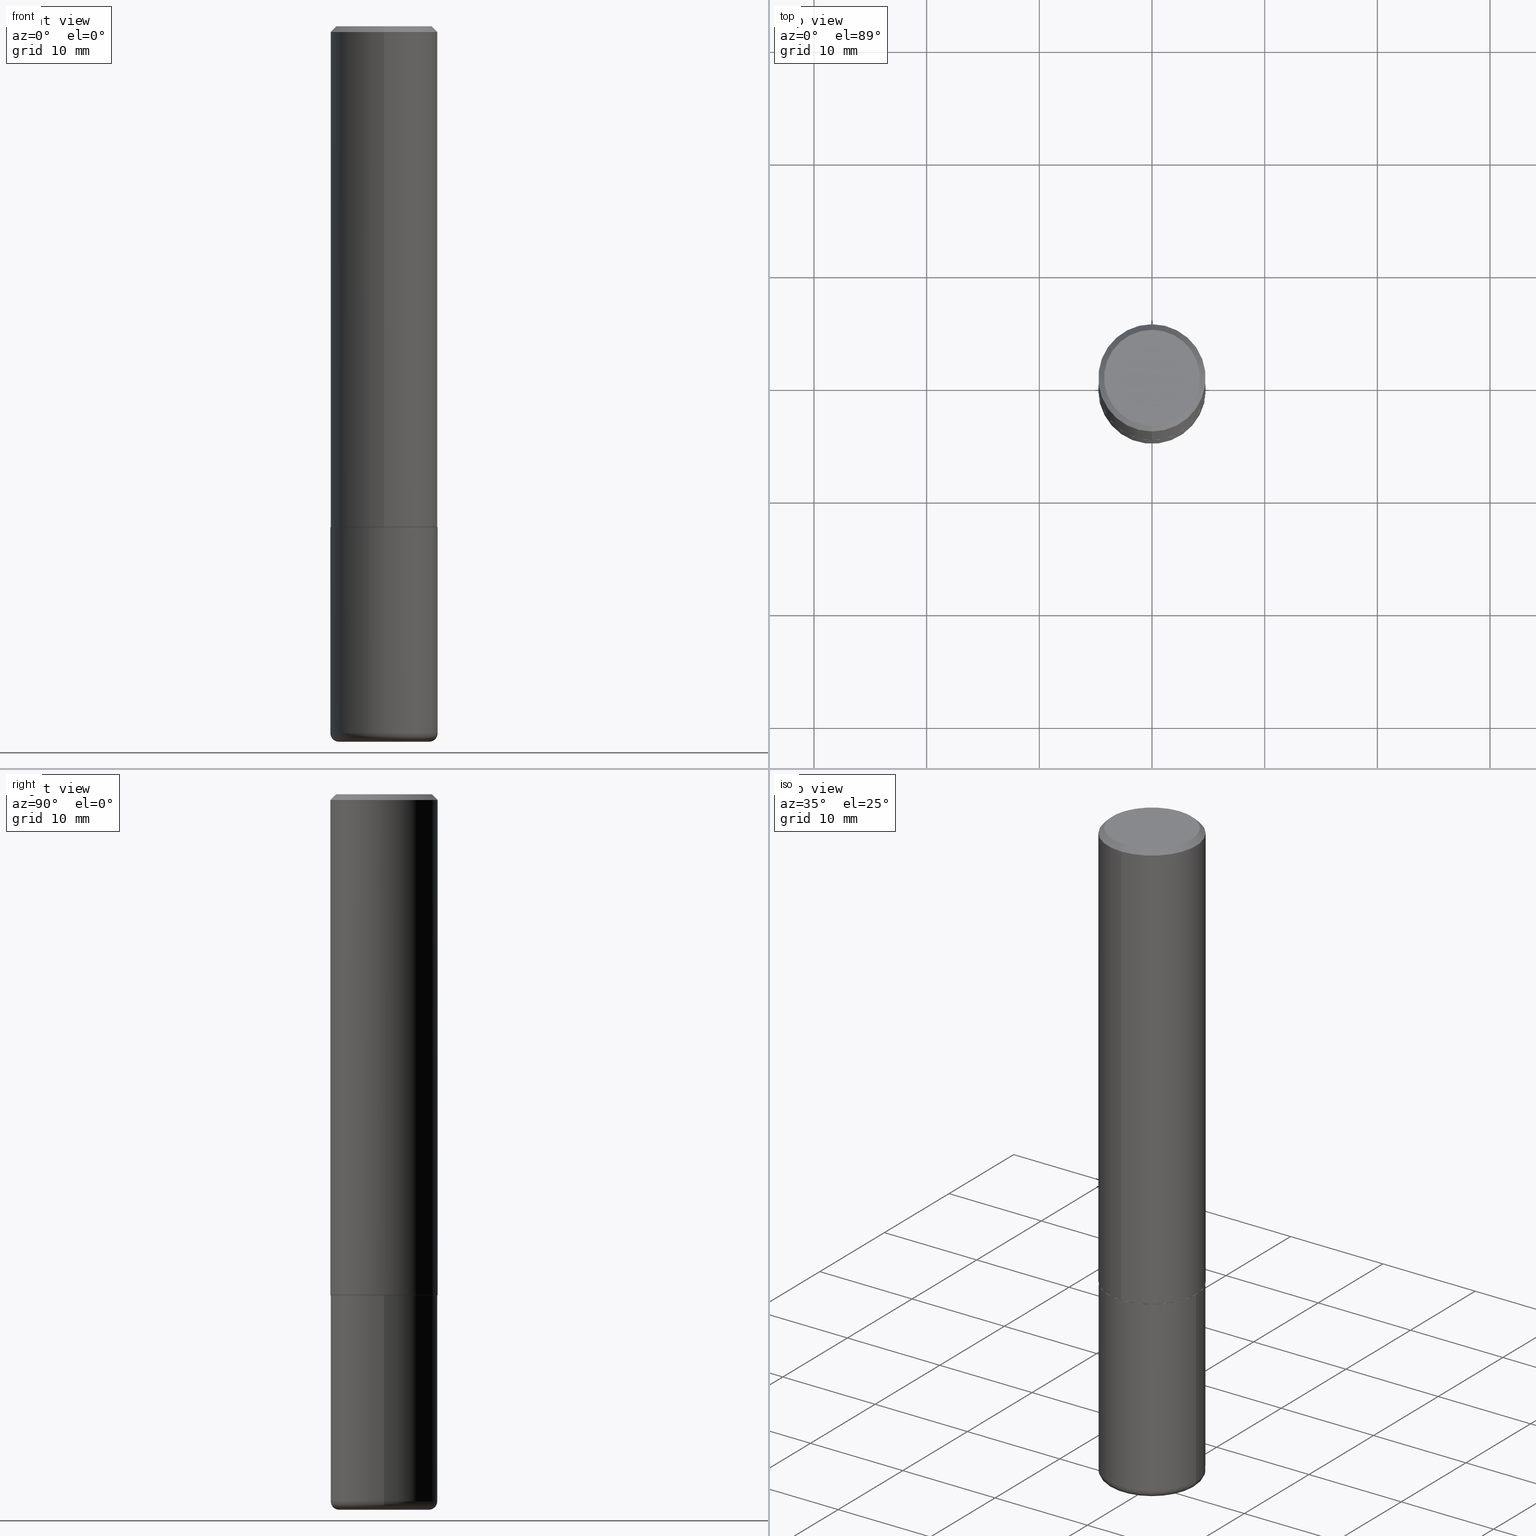
[diagram: canonical four-view strip — front | top / right | iso, engineering-drawing reading convention]
A machine part, canonical four-view strip (front | top / right | iso — engineering-drawing reading convention). The complete STEP part file that produces these views, byte-faithful:
ISO-10303-21;
HEADER;
FILE_DESCRIPTION (( 'STEP AP203' ),
    '1' );
FILE_NAME ('37189.STEP',
    '2024-03-01T21:36:36',
    ( '' ),
    ( '' ),
    'SwSTEP 2.0',
    'SolidWorks 2023',
    '' );
FILE_SCHEMA (( 'CONFIG_CONTROL_DESIGN' ));
ENDSEC;

DATA;
#1 = DIRECTION ( 'NONE',  ( 7.105427357601001859E-15, 1.000000000000000000, -3.491481338843145583E-15 ) ) ;
#2 = EDGE_CURVE ( 'NONE', #291, #316, #162, .T. ) ;
#3 = AXIS2_PLACEMENT_3D ( 'NONE', #144, #333, #50 ) ;
#4 = ORIENTED_EDGE ( 'NONE', *, *, #375, .F. ) ;
#5 = CARTESIAN_POINT ( 'NONE',  ( 0.1875000000000000278, -7.419397845041680468E-15, -1.750000000000000222 ) ) ;
#6 = DIRECTION ( 'NONE',  ( 1.000000000000000000, -6.982962677686266711E-15, 4.876176775795935793E-29 ) ) ;
#7 = CARTESIAN_POINT ( 'NONE',  ( 0.000000000000000000, 0.000000000000000000, 0.000000000000000000 ) ) ;
#8 = PERSON_AND_ORGANIZATION ( #396, #320 ) ;
#9 = VECTOR ( 'NONE', #201, 39.37007874015748143 ) ;
#10 = SECURITY_CLASSIFICATION ( '', '', #218 ) ;
#11 = CARTESIAN_POINT ( 'NONE',  ( -1.286343374582161774E-15, -0.1875000000000001110, -0.01999999999999938632 ) ) ;
#12 = EDGE_CURVE ( 'NONE', #286, #237, #184, .T. ) ;
#13 = FACE_OUTER_BOUND ( 'NONE', #124, .T. ) ;
#14 = DIRECTION ( 'NONE',  ( -6.982962677686265922E-15, -1.000000000000000000, 3.483106191921934371E-15 ) ) ;
#15 = CARTESIAN_POINT ( 'NONE',  ( -1.779621666799247049E-45, 2.542884271553755101E-31, 7.280161000879371670E-17 ) ) ;
#16 = VECTOR ( 'NONE', #373, 39.37007874015748143 ) ;
#17 = DIRECTION ( 'NONE',  ( -6.982962677686265922E-15, -1.000000000000000000, 2.913971193241877216E-15 ) ) ;
#18 = DIRECTION ( 'NONE',  ( -6.982962677686265922E-15, -1.000000000000000000, 2.913971193241877216E-15 ) ) ;
#19 = ORIENTED_EDGE ( 'NONE', *, *, #255, .F. ) ;
#20 = PERSON_AND_ORGANIZATION ( #396, #320 ) ;
#21 = APPROVAL_PERSON_ORGANIZATION ( #34, #266, #174 ) ;
#22 = CARTESIAN_POINT ( 'NONE',  ( -1.309305502066175797E-15, -0.1875000000000001110, 6.549179349999783826E-16 ) ) ;
#23 =( CONVERSION_BASED_UNIT ( 'INCH', #315 ) LENGTH_UNIT ( ) NAMED_UNIT ( #344 ) );
#24 = DIRECTION ( 'NONE',  ( 1.000000000000000000, -6.982962677686269077E-15, 4.883557194083113462E-29 ) ) ;
#25 = ORIENTED_EDGE ( 'NONE', *, *, #99, .F. ) ;
#26 = EDGE_CURVE ( 'NONE', #118, #397, #109, .T. ) ;
#27 = DIRECTION ( 'NONE',  ( -2.444481195655269587E-29, 3.492895653333215411E-15, 1.000000000000000000 ) ) ;
#28 = ORIENTED_EDGE ( 'NONE', *, *, #386, .F. ) ;
#29 = DIRECTION ( 'NONE',  ( -2.444481195655269587E-29, 3.492895653333215411E-15, 1.000000000000000000 ) ) ;
#30 = VECTOR ( 'NONE', #410, 39.37007874015748143 ) ;
#31 = AXIS2_PLACEMENT_3D ( 'NONE', #157, #123, #404 ) ;
#32 = VERTEX_POINT ( 'NONE', #151 ) ;
#33 = EDGE_CURVE ( 'NONE', #291, #105, #413, .T. ) ;
#34 = PERSON_AND_ORGANIZATION ( #396, #320 ) ;
#35 = CARTESIAN_POINT ( 'NONE',  ( 6.113672015462842613E-29, -8.728703347107864943E-15, -2.500000000000000000 ) ) ;
#36 = AXIS2_PLACEMENT_3D ( 'NONE', #35, #152, #388 ) ;
#37 = DIRECTION ( 'NONE',  ( -6.982962677686266711E-15, -1.000000000000000000, 3.492895653333215805E-15 ) ) ;
#38 = DIRECTION ( 'NONE',  ( 0.000000000000000000, 0.000000000000000000, 1.000000000000000000 ) ) ;
#39 = CARTESIAN_POINT ( 'NONE',  ( 0.1575000000000000289, -9.828519968843451634E-15, -2.500000000000000000 ) ) ;
#40 = ORIENTED_EDGE ( 'NONE', *, *, #329, .F. ) ;
#41 = COORDINATED_UNIVERSAL_TIME_OFFSET ( 5, 0, .BEHIND. ) ;
#42 = CONICAL_SURFACE ( 'NONE', #75, 0.1864999999999999991, 0.7853981633975165577 ) ;
#43 = PERSON_AND_ORGANIZATION ( #396, #320 ) ;
#44 = EDGE_CURVE ( 'NONE', #418, #376, #276, .T. ) ;
#45 = DIRECTION ( 'NONE',  ( -2.444481195655269307E-29, 3.492895653333215411E-15, 1.000000000000000000 ) ) ;
#46 = DATE_TIME_ROLE ( 'creation_date' ) ;
#47 = DIRECTION ( 'NONE',  ( -2.444481195655269587E-29, 3.492895653333215411E-15, 1.000000000000000000 ) ) ;
#48 = DIRECTION ( 'NONE',  ( -2.444481195655269587E-29, 3.492895653333215411E-15, 1.000000000000000000 ) ) ;
#49 = ORIENTED_EDGE ( 'NONE', *, *, #386, .T. ) ;
#50 = DIRECTION ( 'NONE',  ( 1.000000000000000000, -6.982962677686269077E-15, 0.000000000000000000 ) ) ;
#51 = CARTESIAN_POINT ( 'NONE',  ( 4.275397611201066851E-29, -6.109074497679794088E-15, -1.749000000000000110 ) ) ;
#52 = AXIS2_PLACEMENT_3D ( 'NONE', #391, #303, #121 ) ;
#53 = FACE_OUTER_BOUND ( 'NONE', #256, .T. ) ;
#54 = EDGE_CURVE ( 'NONE', #286, #32, #409, .T. ) ;
#55 = DIRECTION ( 'NONE',  ( -4.851104656540961908E-15, -0.7071067811865496822, -0.7071067811865453523 ) ) ;
#56 = EDGE_LOOP ( 'NONE', ( #408, #175, #377, #354 ) ) ;
#57 = CARTESIAN_POINT ( 'NONE',  ( 0.1575000000000000289, -9.723775528678158264E-15, -2.470000000000000195 ) ) ;
#58 = FACE_OUTER_BOUND ( 'NONE', #161, .T. ) ;
#59 = ORIENTED_EDGE ( 'NONE', *, *, #208, .F. ) ;
#60 = AXIS2_PLACEMENT_3D ( 'NONE', #189, #146, #312 ) ;
#61 = EDGE_CURVE ( 'NONE', #376, #118, #91, .T. ) ;
#62 = EDGE_LOOP ( 'NONE', ( #233, #352, #229, #49 ) ) ;
#63 = DATE_TIME_ROLE ( 'classification_date' ) ;
#64 = UNCERTAINTY_MEASURE_WITH_UNIT (LENGTH_MEASURE( 1.000000000000000082E-05 ), #23, 'distance_accuracy_value', 'NONE');
#65 = CYLINDRICAL_SURFACE ( 'NONE', #267, 0.1875000000000001110 ) ;
#66 = CARTESIAN_POINT ( 'NONE',  ( -1.302322539388446001E-15, -0.1865000000000061331, -1.749999999999999556 ) ) ;
#67 = ORIENTED_EDGE ( 'NONE', *, *, #74, .F. ) ;
#68 = EDGE_CURVE ( 'NONE', #316, #291, #126, .T. ) ;
#69 = ORIENTED_EDGE ( 'NONE', *, *, #375, .T. ) ;
#70 = APPLICATION_PROTOCOL_DEFINITION ( 'international standard', 'config_control_design', 1994, #311 ) ;
#71 = FACE_OUTER_BOUND ( 'NONE', #172, .T. ) ;
#72 = ORIENTED_EDGE ( 'NONE', *, *, #169, .F. ) ;
#73 = CARTESIAN_POINT ( 'NONE',  ( 1.332267629550188440E-15, 0.1875000000000001110, -6.549179349999783826E-16 ) ) ;
#74 = EDGE_CURVE ( 'NONE', #194, #382, #262, .T. ) ;
#75 = AXIS2_PLACEMENT_3D ( 'NONE', #86, #244, #210 ) ;
#76 = CYLINDRICAL_SURFACE ( 'NONE', #385, 0.1874999999999999722 ) ;
#77 = APPLICATION_PROTOCOL_DEFINITION ( 'international standard', 'config_control_design', 1994, #270 ) ;
#78 = PRODUCT_DEFINITION_SHAPE ( 'NONE', 'NONE',  #398 ) ;
#79 = APPROVAL_ROLE ( '' ) ;
#80 = TOROIDAL_SURFACE ( 'NONE', #254, 0.1575000000000000289, 0.02999999999999995379 ) ;
#81 = PLANE ( 'NONE',  #248 ) ;
#82 = CARTESIAN_POINT ( 'NONE',  ( 4.888962391310548493E-31, -6.985791306666444725E-17, -0.02000000000000003858 ) ) ;
#83 = CARTESIAN_POINT ( 'NONE',  ( 6.113672015462842613E-29, -8.728703347107864943E-15, -2.500000000000000000 ) ) ;
#84 = CARTESIAN_POINT ( 'NONE',  ( 4.279570410823989044E-29, -6.110092342975505460E-15, -1.750000000000000222 ) ) ;
#85 = CARTESIAN_POINT ( 'NONE',  ( 4.277842092396721777E-29, -6.112567393333128547E-15, -1.750000000000000222 ) ) ;
#86 = CARTESIAN_POINT ( 'NONE',  ( 4.277842092396721777E-29, -6.112567393333128547E-15, -1.750000000000000222 ) ) ;
#87 = CONICAL_SURFACE ( 'NONE', #185, 0.1864999999999999991, 0.7853981633975165577 ) ;
#88 = PRODUCT_DEFINITION_FORMATION_WITH_SPECIFIED_SOURCE ( 'ANY', '', #295, .NOT_KNOWN. ) ;
#89 = DESIGN_CONTEXT ( 'detailed design', #270, 'design' ) ;
#90 = EDGE_CURVE ( 'NONE', #237, #194, #358, .T. ) ;
#91 = LINE ( 'NONE', #252, #348 ) ;
#92 = CLOSED_SHELL ( 'NONE', ( #202, #345, #313, #223, #368, #138 ) ) ;
#93 = ORIENTED_EDGE ( 'NONE', *, *, #289, .F. ) ;
#94 = ORIENTED_EDGE ( 'NONE', *, *, #90, .F. ) ;
#95 = DIRECTION ( 'NONE',  ( -2.445468806185136597E-29, 3.491481338843145583E-15, 1.000000000000000000 ) ) ;
#96 = PERSON_AND_ORGANIZATION_ROLE ( 'classification_officer' ) ;
#97 = ORIENTED_EDGE ( 'NONE', *, *, #302, .T. ) ;
#98 = EDGE_LOOP ( 'NONE', ( #97, #269, #140, #330 ) ) ;
#99 = EDGE_CURVE ( 'NONE', #264, #105, #112, .T. ) ;
#100 = CLOSED_SHELL ( 'NONE', ( #117, #356, #246, #176, #383, #407, #182, #283 ) ) ;
#101 = AXIS2_PLACEMENT_3D ( 'NONE', #234, #113, #340 ) ;
#102 = APPROVAL_STATUS ( 'not_yet_approved' ) ;
#103 = DIRECTION ( 'NONE',  ( 1.000000000000000000, -6.982962677686266711E-15, 0.000000000000000000 ) ) ;
#104 = EDGE_LOOP ( 'NONE', ( #69, #158, #67, #94 ) ) ;
#105 = VERTEX_POINT ( 'NONE', #271 ) ;
#106 = APPROVAL ( #181, 'UNSPECIFIED' ) ;
#107 = DIRECTION ( 'NONE',  ( -2.444481195655269307E-29, 3.492895653333215411E-15, 1.000000000000000000 ) ) ;
#108 = COORDINATED_UNIVERSAL_TIME_OFFSET ( 5, 0, .BEHIND. ) ;
#109 = CIRCLE ( 'NONE', #394, 0.1875000000000002220 ) ;
#110 = EDGE_CURVE ( 'NONE', #397, #118, #147, .T. ) ;
#111 = COORDINATED_UNIVERSAL_TIME_OFFSET ( 5, 0, .BEHIND. ) ;
#112 = CIRCLE ( 'NONE', #101, 0.1875000000000000555 ) ;
#113 = DIRECTION ( 'NONE',  ( -2.444481195655269587E-29, 3.492895653333215411E-15, 1.000000000000000000 ) ) ;
#114 = DATE_AND_TIME ( #300, #148 ) ;
#115 = CARTESIAN_POINT ( 'NONE',  ( -1.286343374582161774E-15, -0.1875000000000001110, -0.01999999999999938632 ) ) ;
#116 = CARTESIAN_POINT ( 'NONE',  ( 4.277842092396721777E-29, -6.112567393333128547E-15, -1.750000000000000222 ) ) ;
#117 = ADVANCED_FACE ( 'NONE', ( #251 ), #87, .T. ) ;
#118 = VERTEX_POINT ( 'NONE', #366 ) ;
#119 = DIRECTION ( 'NONE',  ( -2.445468806185136597E-29, 3.491481338843145583E-15, 1.000000000000000000 ) ) ;
#120 = DIRECTION ( 'NONE',  ( -6.982962677686266711E-15, -1.000000000000000000, 3.491481338843145583E-15 ) ) ;
#121 = DIRECTION ( 'NONE',  ( 6.982962677686265922E-15, 1.000000000000000000, -3.483106191921934371E-15 ) ) ;
#122 = AXIS2_PLACEMENT_3D ( 'NONE', #82, #47, #14 ) ;
#123 = DIRECTION ( 'NONE',  ( -2.445468806185136597E-29, 3.491481338843145583E-15, 1.000000000000000000 ) ) ;
#124 = EDGE_LOOP ( 'NONE', ( #222, #72 ) ) ;
#125 = DIRECTION ( 'NONE',  ( 1.000000000000000000, -6.982962677686269077E-15, 0.000000000000000000 ) ) ;
#126 = CIRCLE ( 'NONE', #277, 0.1674999999999999545 ) ;
#127 = CARTESIAN_POINT ( 'NONE',  ( 6.040307951277287977E-29, -8.623958906942569995E-15, -2.470000000000000195 ) ) ;
#128 = CARTESIAN_POINT ( 'NONE',  ( 0.000000000000000000, 0.000000000000000000, 0.000000000000000000 ) ) ;
#129 = APPROVAL_ROLE ( '' ) ;
#130 = ORIENTED_EDGE ( 'NONE', *, *, #169, .T. ) ;
#131 = CARTESIAN_POINT ( 'NONE',  ( -1.217738394604446442E-15, -0.1674999999999999545, 6.578616319421072206E-16 ) ) ;
#132 = CARTESIAN_POINT ( 'NONE',  ( -1.779621666799247049E-45, 2.542884271553755101E-31, 7.280161000879371670E-17 ) ) ;
#133 = LINE ( 'NONE', #232, #9 ) ;
#134 = LINE ( 'NONE', #22, #16 ) ;
#135 = DIRECTION ( 'NONE',  ( -1.000000000000000000, 7.105427357601001859E-15, 0.000000000000000000 ) ) ;
#136 =( GEOMETRIC_REPRESENTATION_CONTEXT ( 3 ) GLOBAL_UNCERTAINTY_ASSIGNED_CONTEXT ( ( #64 ) ) GLOBAL_UNIT_ASSIGNED_CONTEXT ( ( #23, #290, #378 ) ) REPRESENTATION_CONTEXT ( 'NONE', 'WORKASPACE' ) );
#137 = ORIENTED_EDGE ( 'NONE', *, *, #321, .F. ) ;
#138 = ADVANCED_FACE ( 'NONE', ( #13 ), #326, .T. ) ;
#139 = FACE_OUTER_BOUND ( 'NONE', #104, .T. ) ;
#140 = ORIENTED_EDGE ( 'NONE', *, *, #26, .F. ) ;
#141 = DATE_AND_TIME ( #215, #143 ) ;
#142 = CIRCLE ( 'NONE', #227, 0.1875000000000000278 ) ;
#143 = LOCAL_TIME ( 16, 36, 36.00000000000000000, #108 ) ;
#144 = CARTESIAN_POINT ( 'NONE',  ( 6.040307951277287977E-29, -8.623958906942569995E-15, -2.470000000000000195 ) ) ;
#145 = APPROVAL_DATE_TIME ( #141, #106 ) ;
#146 = DIRECTION ( 'NONE',  ( -2.444481195655269587E-29, 3.492895653333215411E-15, 1.000000000000000000 ) ) ;
#147 = CIRCLE ( 'NONE', #164, 0.1875000000000002220 ) ;
#148 = LOCAL_TIME ( 16, 36, 36.00000000000000000, #111 ) ;
#149 = CARTESIAN_POINT ( 'NONE',  ( 0.000000000000000000, 0.000000000000000000, 0.000000000000000000 ) ) ;
#150 = CC_DESIGN_PERSON_AND_ORGANIZATION_ASSIGNMENT ( #212, #331, ( #88 ) ) ;
#151 = CARTESIAN_POINT ( 'NONE',  ( -0.1575000000000000289, -7.450644907839044743E-15, -2.500000000000000000 ) ) ;
#152 = DIRECTION ( 'NONE',  ( 2.438088387897960049E-29, -3.491481338843145188E-15, -1.000000000000000000 ) ) ;
#153 = ORIENTED_EDGE ( 'NONE', *, *, #110, .T. ) ;
#154 = EDGE_LOOP ( 'NONE', ( #40, #350, #200, #285 ) ) ;
#155 = CALENDAR_DATE ( 2024, 1, 3 ) ;
#156 = VECTOR ( 'NONE', #361, 39.37007874015748143 ) ;
#157 = CARTESIAN_POINT ( 'NONE',  ( 6.113672015462842613E-29, -8.728703347107864943E-15, -2.500000000000000000 ) ) ;
#158 = ORIENTED_EDGE ( 'NONE', *, *, #321, .T. ) ;
#159 = ORIENTED_EDGE ( 'NONE', *, *, #44, .F. ) ;
#160 = CARTESIAN_POINT ( 'NONE',  ( 6.040307951277287977E-29, -8.623958906942569995E-15, -2.470000000000000195 ) ) ;
#161 = EDGE_LOOP ( 'NONE', ( #273, #228, #25, #93 ) ) ;
#162 = CIRCLE ( 'NONE', #379, 0.1674999999999999545 ) ;
#163 = ORIENTED_EDGE ( 'NONE', *, *, #12, .F. ) ;
#164 = AXIS2_PLACEMENT_3D ( 'NONE', #51, #48, #18 ) ;
#165 = PRODUCT_RELATED_PRODUCT_CATEGORY ( 'detail', '', ( #295 ) ) ;
#166 = DIRECTION ( 'NONE',  ( -4.937700262164884886E-15, -0.7071067811865933139, 0.7071067811865017205 ) ) ;
#167 = DATE_AND_TIME ( #155, #207 ) ;
#168 = DIRECTION ( 'NONE',  ( -2.445468806185136877E-29, 3.491481338843145188E-15, 1.000000000000000000 ) ) ;
#169 = EDGE_CURVE ( 'NONE', #32, #286, #287, .T. ) ;
#170 = CARTESIAN_POINT ( 'NONE',  ( 4.888962391310548493E-31, -6.985791306666444725E-17, -0.02000000000000003858 ) ) ;
#171 = AXIS2_PLACEMENT_3D ( 'NONE', #7, #38, #323 ) ;
#172 = EDGE_LOOP ( 'NONE', ( #193, #159 ) ) ;
#173 = CYLINDRICAL_SURFACE ( 'NONE', #395, 0.1874999999999999722 ) ;
#174 = APPROVAL_ROLE ( '' ) ;
#175 = ORIENTED_EDGE ( 'NONE', *, *, #309, .T. ) ;
#176 = ADVANCED_FACE ( 'NONE', ( #180 ), #301, .T. ) ;
#177 = CIRCLE ( 'NONE', #3, 0.1874999999999999722 ) ;
#178 = DATE_AND_TIME ( #245, #365 ) ;
#179 =( LENGTH_UNIT ( ) NAMED_UNIT ( * ) SI_UNIT ( $, .METRE. ) );
#180 = FACE_OUTER_BOUND ( 'NONE', #62, .T. ) ;
#181 = APPROVAL_STATUS ( 'not_yet_approved' ) ;
#182 = ADVANCED_FACE ( 'NONE', ( #71 ), #335, .F. ) ;
#183 = CARTESIAN_POINT ( 'NONE',  ( 0.000000000000000000, 0.000000000000000000, 0.000000000000000000 ) ) ;
#184 = CIRCLE ( 'NONE', #205, 0.02999999999999995379 ) ;
#185 = AXIS2_PLACEMENT_3D ( 'NONE', #405, #401, #204 ) ;
#186 = DIRECTION ( 'NONE',  ( -2.445468806185136597E-29, 3.491481338843145583E-15, 1.000000000000000000 ) ) ;
#187 = FACE_OUTER_BOUND ( 'NONE', #154, .T. ) ;
#188 = CARTESIAN_POINT ( 'NONE',  ( 1.309305502066175797E-15, 0.1874999999999999722, -0.02000000000000069084 ) ) ;
#189 = CARTESIAN_POINT ( 'NONE',  ( 4.277842092396721777E-29, -6.112567393333128547E-15, -1.750000000000000222 ) ) ;
#190 = CIRCLE ( 'NONE', #122, 0.1875000000000000555 ) ;
#191 = LOCAL_TIME ( 16, 36, 36.00000000000000000, #259 ) ;
#192 = EDGE_LOOP ( 'NONE', ( #336, #253 ) ) ;
#193 = ORIENTED_EDGE ( 'NONE', *, *, #302, .F. ) ;
#194 = VERTEX_POINT ( 'NONE', #5 ) ;
#195 = CARTESIAN_POINT ( 'NONE',  ( -0.1875000000000000278, -6.034757995408850668E-15, -1.750000000000000222 ) ) ;
#196 = CC_DESIGN_DATE_AND_TIME_ASSIGNMENT ( #198, #63, ( #10 ) ) ;
#197 = ORIENTED_EDGE ( 'NONE', *, *, #327, .F. ) ;
#198 = DATE_AND_TIME ( #415, #191 ) ;
#199 = CONICAL_SURFACE ( 'NONE', #52, 0.1875000000000000555, 0.7853981633974479459 ) ;
#200 = ORIENTED_EDGE ( 'NONE', *, *, #61, .T. ) ;
#201 = DIRECTION ( 'NONE',  ( 5.024295867788404755E-15, 0.7071067811865981989, 0.7071067811864968355 ) ) ;
#202 = ADVANCED_FACE ( 'NONE', ( #139 ), #76, .T. ) ;
#203 = ORIENTED_EDGE ( 'NONE', *, *, #327, .T. ) ;
#204 = DIRECTION ( 'NONE',  ( -6.982962677686265922E-15, -1.000000000000000000, 2.929595703661408456E-15 ) ) ;
#205 = AXIS2_PLACEMENT_3D ( 'NONE', #57, #120, #280 ) ;
#206 = AXIS2_PLACEMENT_3D ( 'NONE', #85, #220, #224 ) ;
#207 = LOCAL_TIME ( 16, 36, 36.00000000000000000, #411 ) ;
#208 = EDGE_CURVE ( 'NONE', #397, #105, #334, .T. ) ;
#209 = ORIENTED_EDGE ( 'NONE', *, *, #68, .T. ) ;
#210 = DIRECTION ( 'NONE',  ( -6.982962677686265922E-15, -1.000000000000000000, 2.929595703661408456E-15 ) ) ;
#211 = ORIENTED_EDGE ( 'NONE', *, *, #289, .T. ) ;
#212 = PERSON_AND_ORGANIZATION ( #396, #320 ) ;
#213 = CARTESIAN_POINT ( 'NONE',  ( -0.1874999999999999722, -7.291691277392382147E-15, -2.470000000000000195 ) ) ;
#214 = DIRECTION ( 'NONE',  ( 1.000000000000000000, -6.982962677686266711E-15, 4.876176775795935793E-29 ) ) ;
#215 = CALENDAR_DATE ( 2024, 1, 3 ) ;
#216 = CC_DESIGN_PERSON_AND_ORGANIZATION_ASSIGNMENT ( #355, #240, ( #295 ) ) ;
#217 = DIRECTION ( 'NONE',  ( 2.444481195655269587E-29, -3.492895653333215411E-15, -1.000000000000000000 ) ) ;
#218 = SECURITY_CLASSIFICATION_LEVEL ( 'unclassified' ) ;
#219 = EDGE_LOOP ( 'NONE', ( #137, #322, #282, #19 ) ) ;
#220 = DIRECTION ( 'NONE',  ( -2.444481195655269587E-29, 3.492895653333215411E-15, 1.000000000000000000 ) ) ;
#221 = AXIS2_PLACEMENT_3D ( 'NONE', #83, #186, #357 ) ;
#222 = ORIENTED_EDGE ( 'NONE', *, *, #54, .F. ) ;
#223 = ADVANCED_FACE ( 'NONE', ( #328 ), #173, .T. ) ;
#224 = DIRECTION ( 'NONE',  ( -6.982962677686265922E-15, -1.000000000000000000, 2.929595703661408456E-15 ) ) ;
#225 = CYLINDRICAL_SURFACE ( 'NONE', #353, 0.1875000000000001110 ) ;
#226 = DIRECTION ( 'NONE',  ( -2.445468806185136597E-29, 3.491481338843145583E-15, 1.000000000000000000 ) ) ;
#227 = AXIS2_PLACEMENT_3D ( 'NONE', #374, #310, #359 ) ;
#228 = ORIENTED_EDGE ( 'NONE', *, *, #208, .T. ) ;
#229 = ORIENTED_EDGE ( 'NONE', *, *, #33, .T. ) ;
#230 = CARTESIAN_POINT ( 'NONE',  ( -0.1874999999999999722, 1.332267629550187651E-15, -9.223003294227946589E-30 ) ) ;
#231 = AXIS2_PLACEMENT_3D ( 'NONE', #399, #363, #389 ) ;
#232 = CARTESIAN_POINT ( 'NONE',  ( 1.325162202192629439E-15, 0.1864999999999938929, -1.750000000000000666 ) ) ;
#233 = ORIENTED_EDGE ( 'NONE', *, *, #309, .F. ) ;
#234 = CARTESIAN_POINT ( 'NONE',  ( 4.888962391310548493E-31, -6.985791306666444725E-17, -0.02000000000000003858 ) ) ;
#235 = CARTESIAN_POINT ( 'NONE',  ( 4.279570410823989044E-29, -6.110092342975505460E-15, -1.750000000000000222 ) ) ;
#236 = DIRECTION ( 'NONE',  ( -2.445468806185136597E-29, 3.491481338843145583E-15, 1.000000000000000000 ) ) ;
#237 = VERTEX_POINT ( 'NONE', #305 ) ;
#238 = VECTOR ( 'NONE', #168, 39.37007874015748143 ) ;
#239 = CARTESIAN_POINT ( 'NONE',  ( 0.1874999999999999722, -1.309305502066174811E-15, 9.142831454617378210E-30 ) ) ;
#240 = PERSON_AND_ORGANIZATION_ROLE ( 'design_owner' ) ;
#241 = APPROVAL ( #319, 'UNSPECIFIED' ) ;
#242 = ORIENTED_EDGE ( 'NONE', *, *, #12, .T. ) ;
#243 = MANIFOLD_SOLID_BREP ( 'Body-Move/Copy2[2]', #100 ) ;
#244 = DIRECTION ( 'NONE',  ( -2.444481195655269587E-29, 3.492895653333215411E-15, 1.000000000000000000 ) ) ;
#245 = CALENDAR_DATE ( 2024, 1, 3 ) ;
#246 = ADVANCED_FACE ( 'NONE', ( #281 ), #199, .T. ) ;
#247 = PERSON_AND_ORGANIZATION_ROLE ( 'design_supplier' ) ;
#248 = AXIS2_PLACEMENT_3D ( 'NONE', #235, #293, #265 ) ;
#249 = CARTESIAN_POINT ( 'NONE',  ( 1.239475875289312499E-15, 0.1674999999999999545, -5.122584119245197133E-16 ) ) ;
#250 = CC_DESIGN_APPROVAL ( #266, ( #398 ) ) ;
#251 = FACE_OUTER_BOUND ( 'NONE', #98, .T. ) ;
#252 = CARTESIAN_POINT ( 'NONE',  ( -1.302322539388446001E-15, -0.1865000000000061331, -1.749999999999999556 ) ) ;
#253 = ORIENTED_EDGE ( 'NONE', *, *, #255, .T. ) ;
#254 = AXIS2_PLACEMENT_3D ( 'NONE', #127, #95, #392 ) ;
#255 = EDGE_CURVE ( 'NONE', #382, #194, #142, .T. ) ;
#256 = EDGE_LOOP ( 'NONE', ( #325, #209 ) ) ;
#257 = APPROVAL_DATE_TIME ( #167, #241 ) ;
#258 = FACE_OUTER_BOUND ( 'NONE', #406, .T. ) ;
#259 = COORDINATED_UNIVERSAL_TIME_OFFSET ( 5, 0, .BEHIND. ) ;
#260 = CC_DESIGN_DATE_AND_TIME_ASSIGNMENT ( #178, #46, ( #398 ) ) ;
#261 = AXIS2_PLACEMENT_3D ( 'NONE', #346, #226, #24 ) ;
#262 = CIRCLE ( 'NONE', #360, 0.1875000000000000278 ) ;
#263 = CC_DESIGN_APPROVAL ( #106, ( #88 ) ) ;
#264 = VERTEX_POINT ( 'NONE', #11 ) ;
#265 = DIRECTION ( 'NONE',  ( -1.000000000000000000, 6.982962677686265922E-15, -4.876176775795935793E-29 ) ) ;
#266 = APPROVAL ( #102, 'UNSPECIFIED' ) ;
#267 = AXIS2_PLACEMENT_3D ( 'NONE', #288, #27, #414 ) ;
#268 = APPROVAL_PERSON_ORGANIZATION ( #390, #106, #79 ) ;
#269 = ORIENTED_EDGE ( 'NONE', *, *, #329, .T. ) ;
#270 = APPLICATION_CONTEXT ( 'configuration controlled 3d designs of mechanical parts and assemblies' ) ;
#271 = CARTESIAN_POINT ( 'NONE',  ( 1.309305502066175797E-15, 0.1874999999999999722, -0.02000000000000069084 ) ) ;
#272 = DIRECTION ( 'NONE',  ( -6.982962677686266711E-15, -1.000000000000000000, 3.492895653333215805E-15 ) ) ;
#273 = ORIENTED_EDGE ( 'NONE', *, *, #26, .T. ) ;
#274 = CC_DESIGN_PERSON_AND_ORGANIZATION_ASSIGNMENT ( #8, #96, ( #10 ) ) ;
#275 = DIRECTION ( 'NONE',  ( -2.445468806185136597E-29, 3.491481338843145583E-15, 1.000000000000000000 ) ) ;
#276 = CIRCLE ( 'NONE', #60, 0.1864999999999999991 ) ;
#277 = AXIS2_PLACEMENT_3D ( 'NONE', #15, #369, #37 ) ;
#278 = PERSON_AND_ORGANIZATION ( #396, #320 ) ;
#279 = PERSON_AND_ORGANIZATION_ROLE ( 'creator' ) ;
#280 = DIRECTION ( 'NONE',  ( 1.000000000000000000, -6.982962677686279332E-15, 0.000000000000000000 ) ) ;
#281 = FACE_OUTER_BOUND ( 'NONE', #56, .T. ) ;
#282 = ORIENTED_EDGE ( 'NONE', *, *, #90, .T. ) ;
#283 = ADVANCED_FACE ( 'NONE', ( #53 ), #412, .F. ) ;
#284 = ADVANCED_BREP_SHAPE_REPRESENTATION ( '37189', ( #367, #243, #171 ), #136 ) ;
#285 = ORIENTED_EDGE ( 'NONE', *, *, #110, .F. ) ;
#286 = VERTEX_POINT ( 'NONE', #39 ) ;
#287 = CIRCLE ( 'NONE', #221, 0.1575000000000000289 ) ;
#288 = CARTESIAN_POINT ( 'NONE',  ( 0.000000000000000000, 0.000000000000000000, 0.000000000000000000 ) ) ;
#289 = EDGE_CURVE ( 'NONE', #118, #264, #134, .T. ) ;
#290 =( NAMED_UNIT ( * ) PLANE_ANGLE_UNIT ( ) SI_UNIT ( $, .RADIAN. ) );
#291 = VERTEX_POINT ( 'NONE', #249 ) ;
#292 = SHAPE_DEFINITION_REPRESENTATION ( #78, #284 ) ;
#293 = DIRECTION ( 'NONE',  ( 2.438088387897960049E-29, -3.491481338843145188E-15, -1.000000000000000000 ) ) ;
#294 = EDGE_LOOP ( 'NONE', ( #370, #203, #4, #163 ) ) ;
#295 = PRODUCT ( '37189', '37189', '', ( #362 ) ) ;
#296 = CIRCLE ( 'NONE', #364, 0.02999999999999995379 ) ;
#297 = CC_DESIGN_SECURITY_CLASSIFICATION ( #10, ( #88 ) ) ;
#298 = DIRECTION ( 'NONE',  ( -6.982962677686265922E-15, -1.000000000000000000, 3.492895653333215411E-15 ) ) ;
#299 = DIRECTION ( 'NONE',  ( -2.445468806185136597E-29, 3.491481338843145583E-15, 1.000000000000000000 ) ) ;
#300 = CALENDAR_DATE ( 2024, 1, 3 ) ;
#301 = CONICAL_SURFACE ( 'NONE', #417, 0.1875000000000000555, 0.7853981633974479459 ) ;
#302 = EDGE_CURVE ( 'NONE', #376, #418, #380, .T. ) ;
#303 = DIRECTION ( 'NONE',  ( 2.444481195655269587E-29, -3.492895653333215411E-15, -1.000000000000000000 ) ) ;
#304 = APPROVAL_DATE_TIME ( #114, #266 ) ;
#305 = CARTESIAN_POINT ( 'NONE',  ( 0.1874999999999999722, -9.933264409008746581E-15, -2.470000000000000195 ) ) ;
#306 = AXIS2_PLACEMENT_3D ( 'NONE', #160, #119, #125 ) ;
#307 = CARTESIAN_POINT ( 'NONE',  ( 1.328714915871430535E-15, 0.1864999999999938929, -1.750000000000000666 ) ) ;
#308 = DIRECTION ( 'NONE',  ( 6.982962677686265922E-15, 1.000000000000000000, -3.483106191921934371E-15 ) ) ;
#309 = EDGE_CURVE ( 'NONE', #316, #264, #343, .T. ) ;
#310 = DIRECTION ( 'NONE',  ( -2.445468806185136597E-29, 3.491481338843145583E-15, 1.000000000000000000 ) ) ;
#311 = APPLICATION_CONTEXT ( 'configuration controlled 3d designs of mechanical parts and assemblies' ) ;
#312 = DIRECTION ( 'NONE',  ( -6.982962677686265922E-15, -1.000000000000000000, 2.929595703661408456E-15 ) ) ;
#313 = ADVANCED_FACE ( 'NONE', ( #400 ), #81, .F. ) ;
#314 = CIRCLE ( 'NONE', #306, 0.1874999999999999722 ) ;
#315 = LENGTH_MEASURE_WITH_UNIT ( LENGTH_MEASURE( 0.02539999999999999897 ), #179 );
#316 = VERTEX_POINT ( 'NONE', #131 ) ;
#317 = FACE_OUTER_BOUND ( 'NONE', #347, .T. ) ;
#318 = AXIS2_PLACEMENT_3D ( 'NONE', #116, #107, #298 ) ;
#319 = APPROVAL_STATUS ( 'not_yet_approved' ) ;
#320 = ORGANIZATION ( 'UNSPECIFIED', 'UNSPECIFIED', '' ) ;
#321 = EDGE_CURVE ( 'NONE', #387, #382, #384, .T. ) ;
#322 = ORIENTED_EDGE ( 'NONE', *, *, #416, .T. ) ;
#323 = DIRECTION ( 'NONE',  ( 1.000000000000000000, 0.000000000000000000, 0.000000000000000000 ) ) ;
#324 = FACE_OUTER_BOUND ( 'NONE', #294, .T. ) ;
#325 = ORIENTED_EDGE ( 'NONE', *, *, #2, .T. ) ;
#326 = PLANE ( 'NONE',  #36 ) ;
#327 = EDGE_CURVE ( 'NONE', #32, #387, #296, .T. ) ;
#328 = FACE_OUTER_BOUND ( 'NONE', #219, .T. ) ;
#329 = EDGE_CURVE ( 'NONE', #418, #397, #133, .T. ) ;
#330 = ORIENTED_EDGE ( 'NONE', *, *, #61, .F. ) ;
#331 = PERSON_AND_ORGANIZATION_ROLE ( 'creator' ) ;
#332 = CC_DESIGN_APPROVAL ( #241, ( #10 ) ) ;
#333 = DIRECTION ( 'NONE',  ( -2.445468806185136597E-29, 3.491481338843145583E-15, 1.000000000000000000 ) ) ;
#334 = LINE ( 'NONE', #73, #403 ) ;
#335 = PLANE ( 'NONE',  #318 ) ;
#336 = ORIENTED_EDGE ( 'NONE', *, *, #74, .T. ) ;
#337 = DIRECTION ( 'NONE',  ( -6.982962677686266711E-15, -1.000000000000000000, 3.492895653333215805E-15 ) ) ;
#338 = CC_DESIGN_PERSON_AND_ORGANIZATION_ASSIGNMENT ( #278, #247, ( #88 ) ) ;
#339 = CARTESIAN_POINT ( 'NONE',  ( 1.332267629550210528E-15, 0.1874999999999941158, -1.749000000000000554 ) ) ;
#340 = DIRECTION ( 'NONE',  ( -6.982962677686265922E-15, -1.000000000000000000, 3.483106191921934371E-15 ) ) ;
#341 = VECTOR ( 'NONE', #55, 39.37007874015748143 ) ;
#342 = DIRECTION ( 'NONE',  ( -2.444481195655269587E-29, 3.492895653333215411E-15, 1.000000000000000000 ) ) ;
#343 = LINE ( 'NONE', #115, #341 ) ;
#344 = DIMENSIONAL_EXPONENTS ( 1.000000000000000000, 0.000000000000000000, 0.000000000000000000, 0.000000000000000000, 0.000000000000000000, 0.000000000000000000, 0.000000000000000000 ) ;
#345 = ADVANCED_FACE ( 'NONE', ( #324 ), #371, .T. ) ;
#346 = CARTESIAN_POINT ( 'NONE',  ( 6.040307951277287977E-29, -8.623958906942569995E-15, -2.470000000000000195 ) ) ;
#347 = EDGE_LOOP ( 'NONE', ( #59, #153, #211, #28 ) ) ;
#348 = VECTOR ( 'NONE', #166, 39.37007874015748143 ) ;
#349 = ORIENTED_EDGE ( 'NONE', *, *, #416, .F. ) ;
#350 = ORIENTED_EDGE ( 'NONE', *, *, #44, .T. ) ;
#351 = CARTESIAN_POINT ( 'NONE',  ( -0.1575000000000000289, -7.504854098120412392E-15, -2.470000000000000195 ) ) ;
#352 = ORIENTED_EDGE ( 'NONE', *, *, #2, .F. ) ;
#353 = AXIS2_PLACEMENT_3D ( 'NONE', #128, #29, #272 ) ;
#354 = ORIENTED_EDGE ( 'NONE', *, *, #33, .F. ) ;
#355 = PERSON_AND_ORGANIZATION ( #396, #320 ) ;
#356 = ADVANCED_FACE ( 'NONE', ( #58 ), #65, .T. ) ;
#357 = DIRECTION ( 'NONE',  ( 1.000000000000000000, -6.982962677686267499E-15, 0.000000000000000000 ) ) ;
#358 = LINE ( 'NONE', #239, #156 ) ;
#359 = DIRECTION ( 'NONE',  ( 1.000000000000000000, -6.982962677686266711E-15, 0.000000000000000000 ) ) ;
#360 = AXIS2_PLACEMENT_3D ( 'NONE', #84, #275, #103 ) ;
#361 = DIRECTION ( 'NONE',  ( -2.445468806185136877E-29, 3.491481338843145188E-15, 1.000000000000000000 ) ) ;
#362 = MECHANICAL_CONTEXT ( 'NONE', #311, 'mechanical' ) ;
#363 = DIRECTION ( 'NONE',  ( 2.444481195655269307E-29, -3.492895653333215411E-15, -1.000000000000000000 ) ) ;
#364 = AXIS2_PLACEMENT_3D ( 'NONE', #351, #1, #135 ) ;
#365 = LOCAL_TIME ( 16, 36, 36.00000000000000000, #41 ) ;
#366 = CARTESIAN_POINT ( 'NONE',  ( -1.309305502066133790E-15, -0.1875000000000063283, -1.748999999999999666 ) ) ;
#367 = MANIFOLD_SOLID_BREP ( 'Body-Move/Copy2[1]', #92 ) ;
#368 = ADVANCED_FACE ( 'NONE', ( #258 ), #80, .T. ) ;
#369 = DIRECTION ( 'NONE',  ( -2.444481195655269587E-29, 3.492895653333215411E-15, 1.000000000000000000 ) ) ;
#370 = ORIENTED_EDGE ( 'NONE', *, *, #54, .T. ) ;
#371 = TOROIDAL_SURFACE ( 'NONE', #261, 0.1575000000000000289, 0.02999999999999995379 ) ;
#372 = CARTESIAN_POINT ( 'NONE',  ( 4.275397611201066851E-29, -6.109074497679794088E-15, -1.749000000000000110 ) ) ;
#373 = DIRECTION ( 'NONE',  ( -2.444481195655269307E-29, 3.492895653333215411E-15, 1.000000000000000000 ) ) ;
#374 = CARTESIAN_POINT ( 'NONE',  ( 4.279570410823989044E-29, -6.110092342975505460E-15, -1.750000000000000222 ) ) ;
#375 = EDGE_CURVE ( 'NONE', #237, #387, #314, .T. ) ;
#376 = VERTEX_POINT ( 'NONE', #66 ) ;
#377 = ORIENTED_EDGE ( 'NONE', *, *, #99, .T. ) ;
#378 =( NAMED_UNIT ( * ) SI_UNIT ( $, .STERADIAN. ) SOLID_ANGLE_UNIT ( ) );
#379 = AXIS2_PLACEMENT_3D ( 'NONE', #132, #393, #337 ) ;
#380 = CIRCLE ( 'NONE', #206, 0.1864999999999999991 ) ;
#381 = APPROVAL_PERSON_ORGANIZATION ( #20, #241, #129 ) ;
#382 = VERTEX_POINT ( 'NONE', #195 ) ;
#383 = ADVANCED_FACE ( 'NONE', ( #317 ), #225, .T. ) ;
#384 = LINE ( 'NONE', #230, #238 ) ;
#385 = AXIS2_PLACEMENT_3D ( 'NONE', #183, #236, #214 ) ;
#386 = EDGE_CURVE ( 'NONE', #105, #264, #190, .T. ) ;
#387 = VERTEX_POINT ( 'NONE', #213 ) ;
#388 = DIRECTION ( 'NONE',  ( -1.000000000000000000, 6.982962677686265922E-15, -4.876176775795935793E-29 ) ) ;
#389 = DIRECTION ( 'NONE',  ( 6.982962677686265922E-15, 1.000000000000000000, -3.492895653333215411E-15 ) ) ;
#390 = PERSON_AND_ORGANIZATION ( #396, #320 ) ;
#391 = CARTESIAN_POINT ( 'NONE',  ( 4.888962391310548493E-31, -6.985791306666444725E-17, -0.02000000000000003858 ) ) ;
#392 = DIRECTION ( 'NONE',  ( 1.000000000000000000, -6.982962677686269077E-15, 4.883557194083113462E-29 ) ) ;
#393 = DIRECTION ( 'NONE',  ( -2.444481195655269587E-29, 3.492895653333215411E-15, 1.000000000000000000 ) ) ;
#394 = AXIS2_PLACEMENT_3D ( 'NONE', #372, #342, #17 ) ;
#395 = AXIS2_PLACEMENT_3D ( 'NONE', #149, #299, #6 ) ;
#396 = PERSON ( 'UNSPECIFIED', 'UNSPECIFIED', 'UNSPECIFIED', ('UNSPECIFIED'), ('UNSPECIFIED'), ('UNSPECIFIED') ) ;
#397 = VERTEX_POINT ( 'NONE', #339 ) ;
#398 = PRODUCT_DEFINITION ( 'UNKNOWN', '', #88, #89 ) ;
#399 = CARTESIAN_POINT ( 'NONE',  ( 1.169646248512449398E-15, 0.1674999999999999545, -5.486592169289166394E-16 ) ) ;
#400 = FACE_OUTER_BOUND ( 'NONE', #192, .T. ) ;
#401 = DIRECTION ( 'NONE',  ( -2.444481195655269587E-29, 3.492895653333215411E-15, 1.000000000000000000 ) ) ;
#402 = CC_DESIGN_PERSON_AND_ORGANIZATION_ASSIGNMENT ( #43, #279, ( #398 ) ) ;
#403 = VECTOR ( 'NONE', #45, 39.37007874015748143 ) ;
#404 = DIRECTION ( 'NONE',  ( 1.000000000000000000, -6.982962677686267499E-15, 0.000000000000000000 ) ) ;
#405 = CARTESIAN_POINT ( 'NONE',  ( 4.277842092396721777E-29, -6.112567393333128547E-15, -1.750000000000000222 ) ) ;
#406 = EDGE_LOOP ( 'NONE', ( #197, #130, #242, #349 ) ) ;
#407 = ADVANCED_FACE ( 'NONE', ( #187 ), #42, .T. ) ;
#408 = ORIENTED_EDGE ( 'NONE', *, *, #68, .F. ) ;
#409 = CIRCLE ( 'NONE', #31, 0.1575000000000000289 ) ;
#410 = DIRECTION ( 'NONE',  ( 4.937700262164545676E-15, 0.7071067811865447972, -0.7071067811865502373 ) ) ;
#411 = COORDINATED_UNIVERSAL_TIME_OFFSET ( 5, 0, .BEHIND. ) ;
#412 = PLANE ( 'NONE',  #231 ) ;
#413 = LINE ( 'NONE', #188, #30 ) ;
#414 = DIRECTION ( 'NONE',  ( -6.982962677686266711E-15, -1.000000000000000000, 3.492895653333215805E-15 ) ) ;
#415 = CALENDAR_DATE ( 2024, 1, 3 ) ;
#416 = EDGE_CURVE ( 'NONE', #387, #237, #177, .T. ) ;
#417 = AXIS2_PLACEMENT_3D ( 'NONE', #170, #217, #308 ) ;
#418 = VERTEX_POINT ( 'NONE', #307 ) ;
ENDSEC;
END-ISO-10303-21;
